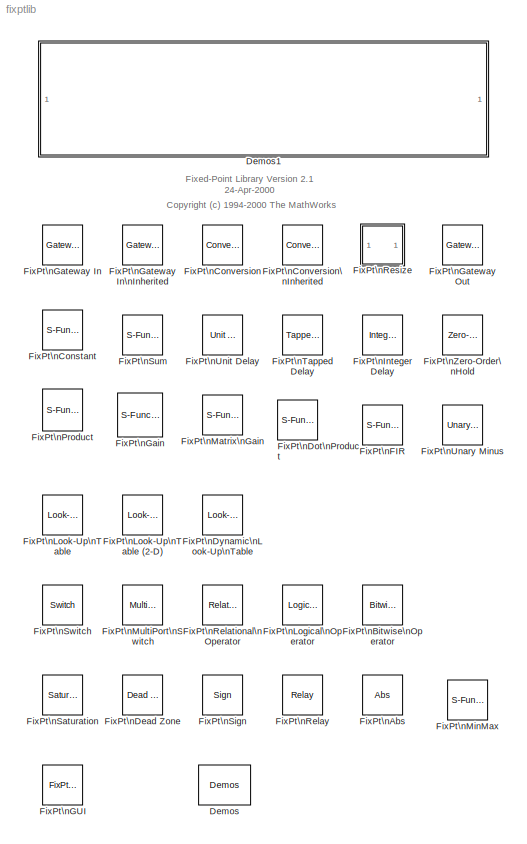
MODEL fixptlib
KIND library
BLOCK [Reference] Demos  REF=fixpt_lib_3p1/Demos
  Ports = []
  SourceBlock = fixpt_lib_3p1/Demos
BLOCK [SubSystem] Demos1
  MaskDisplay = disp('Obsolete version of Fixed-Point Blockset library.\\n\\nDouble Click this block to execute FIXPT.\\n\\nFIXPT will open latest version of the library.')
  MaskIconFrame = on
  MaskIconOpaque = on
  MaskIconRotate = none
  MaskIconUnits = autoscale
  OpenFcn = fixpt;
  Ports = []
  RTWFcnNameOpts = Auto
  RTWFileNameOpts = Auto
  RTWSystemCode = Auto
  ShowPortLabels = on
  TreatAsAtomicUnit = off
BLOCK [Reference] FixPt\nAbs  REF=fixpt_lib_3p1/Math/Abs
  DoSatur = off
  Ports = [1, 1]
  SourceBlock = fixpt_lib_3p1/Math/Abs
  SourceType = Fixed-Point Absolute Value
BLOCK [Reference] FixPt\nBitwise\nOperator  REF=fixpt_lib_3p1/Bits/Bitwise\nOperator
  BitMask = 2^5+2^2+2^0
  BitMaskRealWorld = Stored Integer
  NumInputPorts = 1
  Ports = [1, 1]
  SourceBlock = fixpt_lib_3p1/Bits/Bitwise\nOperator
  SourceType = Fixed-Point Bitwise Operator
  UseBitMask = on
  logicop = AND
BLOCK [S-Function] FixPt\nConstant
  FunctionName = sfix_need_update
  MaskCallbackString = fixptdialog(gcbh)|fixptdialog(gcbh)||fixptdialog(gcbh)|||
  MaskDescription = Generate a constant value.\n\nThis block is obsolete and is not compatible with the current version of Fixed Point Blockset.  The block needs to be replaced using FIXPT_UPDATE.
  MaskDisplay = disp(fixpt_mask_disp_prep(constval))\npatch([2 2 10 10 4 4 8 8 4 4 2 ],[2 10 10 8 8 6 6 4 4 2 2 ],[0 0 0],'bottom-right');
  MaskEnableString = on,on,on,on,on,on,on
  MaskHelp = This block is obsolete and is not compatible with the current version of Fixed Point Blockset.  The block needs to be replaced using FIXPT_UPDATE.
  MaskIconFrame = on
  MaskIconOpaque = on
  MaskIconRotate = none
  MaskIconUnits = normalized
  MaskInitialization = NumInputs = ~SpecifyOutputDataType | ~SpecifyOutputScaling;
  MaskPromptString = Constant value:|Output data type:     ex.  sfix(16),  uint(8),  float('single')|Output scaling:    Slope or [Slope Bias]    ex.  2^-9|Output scaling:|Override data type(s) with doubles|Specify Output Data Type (otherwise inherit) ...|Specify Output Scaling (otherwise inherit) ...
  MaskSelfModifiable = on
  MaskStyleString = edit,edit,edit,popup(Use Specified Scaling|Best Precision: Vector-wise),checkbox,checkbox,checkbox
  MaskToolTipString = on,on,on,on,on,on,on
  MaskTunableValueString = on,on,on,on,on,on,on
  MaskType = Fixed-Point Constant (Obsolete)
  MaskValueString = 0.0|sfix(16)|2^-1000|Best Precision: Vector-wise|off|on|on
  MaskVariableAliases = ,,,,,,
  MaskVariables = constval=@1;OutDataType=@2;OutScaling=@3;ConRadixGroup=@4;DblOver=@5;SpecifyOutputDataType=@6;SpecifyOutputScaling=@7;
  MaskVisibilityString = on,on,on,on,on,on,on
  Parameters = NumInputs
  PortCounts = []
  Ports = [0, 1]
  SFunctionModules = ''
BLOCK [Reference] FixPt\nConversion  REF=fixpt_lib_3p1/Data Type/Conversion
  ConvertRealWorld = Real World Value
  DblOver = off
  DoSatur = off
  LockScale = off
  OutDataType = sfix(16)
  OutScaling = 2^-10
  OutputDataTypeScalingMode = Specify via dialog
  Ports = [1, 1]
  RndMeth = Floor
  SourceBlock = fixpt_lib_3p1/Data Type/Conversion
  SourceType = Fixed-Point to Fixed-Point Conversion
  dolog = on
BLOCK [Reference] FixPt\nConversion\nInherited  REF=fixpt_lib_3p1/Data Type/Conversion\nInherited
  ConvertRealWorld = Real World Value
  DblOver = off
  DoSatur = off
  Ports = [2, 1]
  RndMeth = Floor
  SourceBlock = fixpt_lib_3p1/Data Type/Conversion\nInherited
  SourceType = Fixed-Point to Fixed-Point Inherited Conversion
  dolog = on
BLOCK [Reference] FixPt\nDead Zone  REF=fixpt_lib_3p1/Nonlinear/Dead Zone
  DoSatur = off
  LowerValue = -1
  Ports = [1, 1]
  SourceBlock = fixpt_lib_3p1/Nonlinear/Dead Zone
  SourceType = Fixed-Point Dead Zone
  UpperValue = 1
BLOCK [S-Function] FixPt\nDot\nProduct
  FunctionName = sfix_need_update
  MaskCallbackString = fixptdialog(gcbh)|||||||
  MaskDescription = Inner (dot) product.\ny = sum(conj(u1).*u2)\n\nThis block is obsolete and is not compatible with the current version of Fixed Point Blockset.  The block needs to be replaced using FIXPT_UPDATE.
  MaskDisplay = patch([0.55 0.5433 0.525 0.5 0.475 0.4567 0.45 0.4567 0.475 0.5 0.525 0.5433 0.55],[ 0.5 0.525 0.5433 0.55 0.5433 0.525 0.5 0.475 0.4567 0.45 0.4567 0.475 0.5],[0 0 0])\npatch([2 2 10 10 4 4 8 8 4 4 2 ],[2 10 10 8 8 6 6 4 4 2 2 ],[0 0 0],'bottom-right');
  MaskEnableString = on,on,on,on,on,on,on,on
  MaskHelp = This block is obsolete and is not compatible with the current version of Fixed Point Blockset.  The block needs to be replaced using FIXPT_UPDATE.
  MaskIconFrame = on
  MaskIconOpaque = on
  MaskIconRotate = none
  MaskIconUnits = normalized
  MaskPromptString = Output data type:     ex.  sfix(16),  uint(8),  float('single')|Output scaling:    Slope or [Slope Bias]    ex.  2^-9|Lock output scaling so autoscaling tool can't change it|Round toward:|Saturate to max or min when overflows occur|Override data type(s) with doubles|Log minimums and maximums|SpecifyOutputDataTypeAndScaling
  MaskSelfModifiable = on
  MaskStyleString = edit,edit,checkbox,popup(Zero|Nearest|Ceiling|Floor),checkbox,checkbox,checkbox,checkbox
  MaskToolTipString = on,on,on,on,on,on,on,on
  MaskTunableValueString = on,on,on,on,on,on,on,on
  MaskType = Fixed-Point Dot Product (Obsolete)
  MaskValueString = sfix(16)|2^-10|off|Floor|off|off|on|on
  MaskVariableAliases = ,,,,,,,
  MaskVariables = OutDataType=@1;OutScaling=@2;LockScale=@3;RndMeth=@4;DoSatur=@5;DblOver=@6;dolog=@7;SpecifyOutputDataTypeAndScaling=@8;
  MaskVisibilityString = on,on,on,on,on,on,on,on
  Parameters = 2
  PortCounts = []
  Ports = [2, 1]
  SFunctionModules = ''
BLOCK [Reference] FixPt\nDynamic\nLook-Up\nTable  REF=fixpt_lib_3p1/LookUp/Look-Up\nTable\nDynamic
  DblOver = off
  DoSatur = off
  LockScale = off
  LookUpMeth = Interpolation-Use End Values
  OutDataType = sfix(16)
  OutScaling = 2^-10
  OutputDataTypeScalingMode = Specify via dialog
  Ports = [3, 1]
  RndMeth = Floor
  SourceBlock = fixpt_lib_3p1/LookUp/Look-Up\nTable\nDynamic
  SourceType = Fixed-Point Look-Up Table Dynamic
  dolog = on
BLOCK [S-Function] FixPt\nFIR
  FunctionName = sfix_need_update
  MaskCallbackString = fixptdialog(gcbh)|||fixptdialog(gcbh)||fixptdialog(gcbh)|fixptdialog(gcbh)|||||||
  MaskDescription = Implement a finite impulse response (FIR) filter.\n\nThis block is obsolete and is not compatible with the current version of Fixed Point Blockset.  The block needs to be replaced using FIXPT_UPDATE.
  MaskDisplay = fprintf(fixpt_fir_mask_data(mgainval,'dispstr'))\nplot(fixpt_fir_mask_data(mgainval,1),fixpt_fir_mask_data(mgainval,0))\npatch([2 2 10 10 4 4 8 8 4 4 2 ],[2 10 10 8 8 6 6 4 4 2 2 ],[0 0 0],'bottom-right');
  MaskEnableString = on,on,on,on,on,on,on,on,on,on,on,on,on,on
  MaskHelp = This block is obsolete and is not compatible with the current version of Fixed Point Blockset.  The block needs to be replaced using FIXPT_UPDATE.
  MaskIconFrame = on
  MaskIconOpaque = on
  MaskIconRotate = none
  MaskIconUnits = normalized
  MaskInitialization = if MatRadixGroup == 5\n    RadixGroup = 1; % BEST_PREC_MAT\nelseif MatRadixGroup == 4\n    RadixGroup = 2; % BEST_PREC_COL\nelseif MatRadixGroup == 3\n    RadixGroup = 3; % BEST_PREC_ROW\nelseif MatRadixGroup == 2\n    RadixGroup = 4; % BEST_PREC_ELE\nelse\n    RadixGroup = 0; % BEST_PREC_OFF\nend
  MaskPromptString = FIR coefficients:|Initial condition:|Sample time:|Parameter data type:     ex. sfix(16),  uint(8), float('single')|Parameter scaling:    Slope    ex.  2^-9|Parameter scaling:|Output data type:     ex.  sfix(16),  uint(8),  float('single')|Output scaling:    Slope or [Slope Bias]    ex.  2^-9|Lock output scaling so autoscaling tool can't change it|Round toward:|Saturate to max or min when overflows...<+99ch>
  MaskSelfModifiable = on
  MaskStyleString = edit,edit,edit,edit,edit,popup(Use Specified Scaling|Best Precision: Element-wise|Best Precision: Row-wise|Best Precision: Column-wise|Best Precision: Matrix-wise),edit,edit,checkbox,popup(Zero|Nearest|Ceiling|Floor),checkbox,checkbox,checkbox,checkbox
  MaskToolTipString = on,on,on,on,on,on,on,on,on,on,on,on,on,on
  MaskTunableValueString = on,on,on,on,on,on,on,on,on,on,on,on,on,on
  MaskType = Fixed-Point FIR (Obsolete)
  MaskValueString = [0.1:0.1:1 0.9:-0.1:0.1]|0.0|-1|sfix( 16 )|2^-14|Best Precision: Matrix-wise|sfix(16)|2^-10|off|Floor|off|off|on|on
  MaskVariableAliases = ,,,,,,,,,,,,,
  MaskVariables = mgainval=@1;vinit=@2;samptime=@3;GainDataType=@4;GainScaling=@5;MatRadixGroup=@6;OutDataType=@7;OutScaling=@8;LockScale=@9;RndMeth=@10;DoSatur=@11;DblOver=@12;dolog=@13;SpecifyOutputDataTypeAndScaling=@14;
  MaskVisibilityString = on,on,on,on,on,on,on,on,on,on,on,on,on,on
  Parameters = 1
  PortCounts = []
  Ports = [1, 1]
  SFunctionModules = ''
BLOCK [Reference] FixPt\nGUI  REF=fixpt_lib_3p1/FixPt\nGUI
  Ports = []
  SourceBlock = fixpt_lib_3p1/FixPt\nGUI
  SourceType = Fixed-Point GUI
BLOCK [S-Function] FixPt\nGain
  FunctionName = sfix_need_update
  MaskCallbackString = fixptdialog(gcbh)|fixptdialog(gcbh)||fixptdialog(gcbh)|fixptdialog(gcbh)||||||||
  MaskDescription = Multiply the input by a constant (gain).\n\nThis block is obsolete and is not compatible with the current version of Fixed Point Blockset.  The block needs to be replaced using FIXPT_UPDATE.
  MaskDisplay = disp(fixpt_mask_disp_prep(gainval))\nplot(fixpt_gain_mask_data(gcbh,1),fixpt_gain_mask_data(gcbh,0))\npatch([2 2 10 10 4 4 8 8 4 4 2 ],[2 10 10 8 8 6 6 4 4 2 2 ],[0 0 0],'bottom-right');
  MaskEnableString = on,on,on,on,on,on,on,on,on,on,on,on,on
  MaskHelp = This block is obsolete and is not compatible with the current version of Fixed Point Blockset.  The block needs to be replaced using FIXPT_UPDATE.
  MaskIconFrame = off
  MaskIconOpaque = on
  MaskIconRotate = none
  MaskIconUnits = normalized
  MaskInitialization = if VecRadixGroup >= 5\n    RadixGroup = 1; % BEST_PREC_MAT\nelseif VecRadixGroup == 4\n    RadixGroup = 2; % BEST_PREC_COL\nelseif VecRadixGroup == 3\n    RadixGroup = 3; % BEST_PREC_ROW\nelseif VecRadixGroup == 2\n    RadixGroup = 4; % BEST_PREC_ELE\nelse\n    RadixGroup = 0; % BEST_PREC_OFF\nend
  MaskPromptString = Gain value:|Parameter data type:     ex. sfix(16),  uint(8), float('single')|Parameter scaling:    Slope    ex.  2^-9|Parameter scaling:|Output data type:     ex.  sfix(16),  uint(8),  float('single')|Output scaling:    Slope or [Slope Bias]    ex.  2^-9|Lock output scaling so autoscaling tool can't change it|Round toward:|Saturate to max or min when overflows occur|Override data type(s) with doub...<+76ch>
  MaskSelfModifiable = on
  MaskStyleString = edit,edit,edit,popup(Use Specified Scaling|Best Precision: Element-wise|Best Precision: Row-wise|Best Precision: Column-wise|Best Precision: Matrix-wise|Best Precision: Vector-wise),edit,edit,checkbox,popup(Zero|Nearest|Ceiling|Floor),checkbox,checkbox,checkbox,popup(Element-wise(K.*u)|Matrix(K*u)|Matrix(u*K)|Matrix(K*u) (u vector)),checkbox
  MaskToolTipString = on,on,on,on,on,on,on,on,on,on,on,on,on
  MaskTunableValueString = on,on,on,on,on,on,on,on,on,on,on,on,on
  MaskType = Fixed-Point Gain (Obsolete)
  MaskValueString = 1.0|sfix( 16 )|2^-14|Best Precision: Matrix-wise|sfix(16)|2^-10|off|Floor|off|off|on|Element-wise(K.*u)|on
  MaskVariableAliases = ,,,,,,,,,,,,
  MaskVariables = gainval=@1;GainDataType=@2;GainScaling=@3;VecRadixGroup=@4;OutDataType=@5;OutScaling=@6;LockScale=@7;RndMeth=@8;DoSatur=@9;DblOver=@10;dolog=@11;ElevsMatrix=@12;SpecifyOutputDataTypeAndScaling=@13;
  MaskVisibilityString = on,on,on,on,on,on,on,on,on,on,on,on,on
  Parameters = 1
  PortCounts = []
  Ports = [1, 1]
  SFunctionModules = ''
BLOCK [Reference] FixPt\nGateway In  REF=fixpt_lib_3p1/Data Type/Gateway In
  DblOver = off
  DoSatur = off
  InRealWorld = Real World Value
  LockScale = off
  OutDataType = sfix(16)
  OutScaling = 2^-10
  OutputDataTypeScalingMode = Specify via dialog
  Ports = [1, 1]
  RndMeth = Floor
  SourceBlock = fixpt_lib_3p1/Data Type/Gateway In
  SourceType = Fixed-Point Gateway In
  dolog = on
BLOCK [Reference] FixPt\nGateway In\nInherited  REF=fixpt_lib_3p1/Data Type/Gateway In\nInherited
  DblOver = off
  DoSatur = off
  InRealWorld = Real World Value
  Ports = [2, 1]
  RndMeth = Floor
  SourceBlock = fixpt_lib_3p1/Data Type/Gateway In\nInherited
  SourceType = Fixed-Point Gateway In Inherited
  dolog = on
BLOCK [Reference] FixPt\nGateway Out  REF=fixpt_lib_3p1/Data Type/Gateway Out
  DoSatur = off
  OutBuiltInType = double
  OutRealWorld = Real World Value
  Ports = [1, 1]
  RndMeth = Floor
  SourceBlock = fixpt_lib_3p1/Data Type/Gateway Out
  SourceType = Fixed-Point Gateway Out
  dolog = off
BLOCK [Reference] FixPt\nInteger Delay  REF=fixpt_lib_3p1/Delays & Holds/Integer Delay
  NumDelays = 4
  Ports = [1, 1]
  SourceBlock = fixpt_lib_3p1/Delays & Holds/Integer Delay
  SourceType = Fixed-Point Integer Delay
  samptime = -1
  vinit = 0.0
BLOCK [Reference] FixPt\nLogical\nOperator  REF=fixpt_lib_3p1/Logic & Comparison/Logical\nOperator
  LogicDataType = uint(8)
  NumInputPorts = 2
  Ports = [2, 1]
  SourceBlock = fixpt_lib_3p1/Logic & Comparison/Logical\nOperator
  SourceType = Fixed-Point Logical Operator
  logicop = AND
BLOCK [Reference] FixPt\nLook-Up\nTable  REF=fixpt_lib_3p1/LookUp/Look-Up\nTable
  DblOver = off
  DoSatur = off
  LockScale = off
  LookUpMeth = Interpolation-Use End Values
  OutDataType = sfix(16)
  OutScaling = 2^-10
  OutputDataTypeScalingMode = Specify via dialog
  Ports = [1, 1]
  RndMeth = Floor
  SourceBlock = fixpt_lib_3p1/LookUp/Look-Up\nTable
  SourceType = Fixed-Point Look-Up Table
  XLookUpData = -5:5
  YLookUpData = tanh([-5:5])
  dolog = on
BLOCK [Reference] FixPt\nLook-Up\nTable (2-D)  REF=fixpt_lib_3p1/LookUp/Look-Up\nTable (2-D)
  ColLookUpData = [1:3]
  DblOver = off
  DoSatur = off
  LockScale = off
  LookUpMeth = Interpolation-Use End Values
  OutDataType = sfix(16)
  OutScaling = 2^-10
  OutputDataTypeScalingMode = Specify via dialog
  Ports = [2, 1]
  RndMeth = Floor
  RowLookUpData = [1:3]
  SourceBlock = fixpt_lib_3p1/LookUp/Look-Up\nTable (2-D)
  SourceType = Fixed-Point Look-Up Table (2-D)
  TableLookUpData = [4 5 6;16 19 20;10 18 23]
  dolog = on
BLOCK [S-Function] FixPt\nMatrix\nGain
  FunctionName = sfix_need_update
  MaskCallbackString = fixptdialog(gcbh)|fixptdialog(gcbh)||fixptdialog(gcbh)|fixptdialog(gcbh)||||||||
  MaskDescription = Multiply the input by a constant (gain).\n\nThis block is obsolete and is not compatible with the current version of Fixed Point Blockset.  The block needs to be replaced using FIXPT_UPDATE.
  MaskDisplay = fprintf('K')\npatch([2 2 10 10 4 4 8 8 4 4 2 ],[2 10 10 8 8 6 6 4 4 2 2 ],[0 0 0],'bottom-right');
  MaskEnableString = on,on,on,on,on,on,on,on,on,on,on,on,on
  MaskHelp = This block is obsolete and is not compatible with the current version of Fixed Point Blockset.  The block needs to be replaced using FIXPT_UPDATE.
  MaskIconFrame = on
  MaskIconOpaque = on
  MaskIconRotate = none
  MaskIconUnits = normalized
  MaskInitialization = if MatRadixGroup == 5\n    RadixGroup = 1; % BEST_PREC_MAT\nelseif MatRadixGroup == 4\n    RadixGroup = 2; % BEST_PREC_COL\nelseif MatRadixGroup == 3\n    RadixGroup = 3; % BEST_PREC_ROW\nelseif MatRadixGroup == 2\n    RadixGroup = 4; % BEST_PREC_ELE\nelse\n    RadixGroup = 0; % BEST_PREC_OFF\nend
  MaskPromptString = Gain matrix value:|Parameter data type:     ex. sfix(16),  uint(8), float('single')|Parameter scaling:    Slope    ex.  2^-9|Parameter scaling:|Output data type:     ex.  sfix(16),  uint(8),  float('single')|Output scaling:    Slope or [Slope Bias]    ex.  2^-9|Lock output scaling so autoscaling tool can't change it|Round toward:|Saturate to max or min when overflows occur|Override data type(s) wi...<+83ch>
  MaskSelfModifiable = on
  MaskStyleString = edit,edit,edit,popup(Use Specified Scaling|Best Precision: Element-wise|Best Precision: Row-wise|Best Precision: Column-wise|Best Precision: Matrix-wise),edit,edit,checkbox,popup(Zero|Nearest|Ceiling|Floor),checkbox,checkbox,checkbox,popup(Element-wise(K.*u)|Matrix(K*u)|Matrix(u*K)|Matrix(K*u) (u vector)),checkbox
  MaskToolTipString = on,on,on,on,on,on,on,on,on,on,on,on,on
  MaskTunableValueString = on,on,on,on,on,on,on,on,on,on,on,on,on
  MaskType = Fixed-Point Matrix Gain (Obsolete)
  MaskValueString = eye(3,3)|sfix( 16 )|2^-14|Best Precision: Matrix-wise|sfix(16)|2^-10|off|Floor|off|off|on|Matrix(K*u) (u vector)|on
  MaskVariableAliases = ,,,,,,,,,,,,
  MaskVariables = mgainval=@1;GainDataType=@2;GainScaling=@3;MatRadixGroup=@4;OutDataType=@5;OutScaling=@6;LockScale=@7;RndMeth=@8;DoSatur=@9;DblOver=@10;dolog=@11;ElevsMatrix=@12;SpecifyOutputDataTypeAndScaling=@13;
  MaskVisibilityString = on,on,on,on,on,on,on,on,on,on,on,on,on
  Parameters = 1
  PortCounts = []
  Ports = [1, 1]
  SFunctionModules = ''
BLOCK [S-Function] FixPt\nMinMax
  FunctionName = sfix_need_update
  MaskCallbackString = ||fixptdialog(gcbh)|||||||
  MaskDescription = Output min or max of input.  For a single input, operators are applied across the input vector.  For multiple inputs, operators are applied across the inputs.\n\nThis block is obsolete and is not compatible with the current version of Fixed Point Blockset.  The block needs to be replaced using FIXPT_UPDATE.
  MaskDisplay = disp(char((Function==1)*'min'+(Function==2)*'max'))\npatch([2 2 10 10 4 4 8 8 4 4 2 ],[2 10 10 8 8 6 6 4 4 2 2 ],[0 0 0],'bottom-right');
  MaskEnableString = on,on,on,on,on,on,on,on,on,on
  MaskHelp = This block is obsolete and is not compatible with the current version of Fixed Point Blockset.  The block needs to be replaced using FIXPT_UPDATE.
  MaskIconFrame = on
  MaskIconOpaque = on
  MaskIconRotate = none
  MaskIconUnits = normalized
  MaskPromptString = Function:|Number of input ports:|Output data type:     ex.  sfix(16),  uint(8),  float('single')|Output scaling:    Slope or [Slope Bias]    ex.  2^-9|Lock output scaling so autoscaling tool can't change it|Round toward:|Saturate to max or min when overflows occur|Override data type(s) with doubles|Log minimums and maximums|SpecifyOutputDataTypeAndScaling
  MaskSelfModifiable = on
  MaskStyleString = popup(min|max),edit,edit,edit,checkbox,popup(Zero|Nearest|Ceiling|Floor),checkbox,checkbox,checkbox,checkbox
  MaskToolTipString = on,on,on,on,on,on,on,on,on,on
  MaskTunableValueString = on,on,on,on,on,on,on,on,on,on
  MaskType = Fixed-Point MinMax (Obsolete)
  MaskValueString = min|1|sfix(16)|2^-10|off|Floor|off|off|on|on
  MaskVariableAliases = ,,,,,,,,,
  MaskVariables = Function=@1;Inputs=@2;OutDataType=@3;OutScaling=@4;LockScale=@5;RndMeth=@6;DoSatur=@7;DblOver=@8;dolog=@9;SpecifyOutputDataTypeAndScaling=@10;
  MaskVisibilityString = on,on,on,on,on,on,on,on,on,on
  Parameters = Inputs
  PortCounts = []
  Ports = [1, 1]
  SFunctionModules = ''
BLOCK [Reference] FixPt\nMultiPort\nSwitch  REF=fixpt_lib_3p1/Select/MultiPort\nSwitch
  DoSatur = off
  NumInputPorts = 3
  OutputDataTypeScalingMode = Inherit via internal rule
  Ports = [4, 1]
  RndMeth = Floor
  SourceBlock = fixpt_lib_3p1/Select/MultiPort\nSwitch
  SourceType = Fixed-Point Multi Port Switch
  dolog = on
  zeroidx = off
BLOCK [S-Function] FixPt\nProduct
  FunctionName = sfix_need_update
  MaskCallbackString = |fixptdialog(gcbh)||||||||
  MaskDescription = Multiply or divide inputs. Specify one of the following:\na)  A * or / for each input\nb)  The number of inputs if only multiplication is desired\nc)  A single * or / to collapse a vector\n\nThis block is obsolete and is not compatible with the current version of Fixed Point Blockset.  The block needs to be replaced using FIXPT_UPDATE.
  MaskDisplay = plot(fixpt_mul_mask_data(gcbh,mulstr,1,MatrixMult),fixpt_mul_mask_data(gcbh,mulstr,0,MatrixMult))\npatch([2 2 10 10 4 4 8 8 4 4 2 ],[2 10 10 8 8 6 6 4 4 2 2 ],[0 0 0],'bottom-right');\ndisp(fixpt_mul_mask_data_str(gcbh,MatrixMult))
  MaskEnableString = on,on,on,on,on,on,on,on,on,on
  MaskHelp = This block is obsolete and is not compatible with the current version of Fixed Point Blockset.  The block needs to be replaced using FIXPT_UPDATE.
  MaskIconFrame = on
  MaskIconOpaque = on
  MaskIconRotate = none
  MaskIconUnits = normalized
  MaskInitialization = mulstr = '**';\nif ~isempty (listofops)\n   if all(  ( listofops == '*' ) | ( listofops == '/' )  )\n      mulstr = listofops;\n   else\n      i = eval(listofops,'-1');\n      if i < 2\n         mulstr = '*';\n         if i < 1\n           disp(get_param(gcb,'Name'))\n           disp('Error: Please enter multiplier/divider string OR number of inputs');\n         end\n      else\n         i = min(i...<+125ch>
  MaskPromptString = Enter */ characters or the number of inputs:|Output data type:     ex.  sfix(16),  uint(8),  float('single')|Output scaling:    Slope or [Slope Bias]    ex.  2^-9|Lock output scaling so autoscaling tool can't change it|Round toward:|Saturate to max or min when overflows occur|Override data type(s) with doubles|Log minimums and maximums|Multiplication|SpecifyOutputDataTypeAndScaling
  MaskSelfModifiable = on
  MaskStyleString = edit,edit,edit,checkbox,popup(Zero|Nearest|Ceiling|Floor),checkbox,checkbox,checkbox,popup(Element-wise(.*)|Matrix(*)),checkbox
  MaskToolTipString = on,on,on,on,on,on,on,on,on,on
  MaskTunableValueString = on,on,on,on,on,on,on,on,on,on
  MaskType = Fixed-Point Product (Obsolete)
  MaskValueString = **|sfix(16)|2^-10|off|Floor|off|off|on|Element-wise(.*)|on
  MaskVariableAliases = ,,,,,,,,,
  MaskVariables = listofops=&1;OutDataType=@2;OutScaling=@3;LockScale=@4;RndMeth=@5;DoSatur=@6;DblOver=@7;dolog=@8;ElevsMatrix=@9;SpecifyOutputDataTypeAndScaling=@10;
  MaskVisibilityString = on,on,on,on,on,on,on,on,on,on
  Parameters = length(mulstr)
  PortCounts = []
  Ports = [2, 1]
  SFunctionModules = ''
BLOCK [Reference] FixPt\nRelational\nOperator  REF=fixpt_lib_3p1/Logic & Comparison/Relational\nOperator
  LogicDataType = uint(8)
  Ports = [2, 1]
  SourceBlock = fixpt_lib_3p1/Logic & Comparison/Relational\nOperator
  SourceType = Fixed-Point Relational Operator
  relop = <=
BLOCK [Reference] FixPt\nRelay  REF=fixpt_lib_3p1/Nonlinear/Relay
  ConRadixGroup = Best Precision: Vector-wise
  DblOver = off
  OffOutputValue = 0
  OffSwitchValue = 0
  OnOutputValue = 1
  OnSwitchValue = 0
  OutDataType = uint(8)
  OutScaling = 2^-10
  OutputDataTypeScalingMode = Specify via dialog
  Ports = [1, 1]
  SourceBlock = fixpt_lib_3p1/Nonlinear/Relay
  SourceType = Fixed-Point Relay
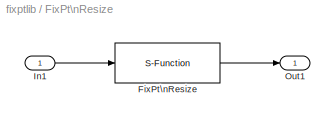
BLOCK [SubSystem] FixPt\nResize
  MaskCallbackString = if any(strcmp(get_param(gcb, 'ResizeAction'), {'Decrease bits by half', 'Increase bits by twice'})), set_param(gcb, 'MaskVisibilities', {'on'; 'on'; 'off'; 'on'; 'on'; 'on'; 'on'}), else, set_param(gcb, 'MaskVisibilities', {'on'; 'on'; 'on'; 'on'; 'on'; 'on'; 'on'}), end||||||
  MaskDescription = Resize the number of bits used by a Fixed-Point Blockset signal.\n\nThis block is obsolete and is not compatible with the current version of Fixed Point Blockset.  The block needs to be replaced using FIXPT_UPDATE.
  MaskDisplay = fprintf('Resize')\npatch([0.725 0.725 0.975 0.975 0.8 0.8 0.925 0.925 0.8 0.8 0.725 ],[0.025 0.275 0.275 0.2 0.2 0.15 0.15 0.075 0.075 0.025 0.025 ],[0 0 0]);\npatch([0.05 0.05 0.3 0.3 0.125 0.125 0.25 0.25 0.125 0.125 0.05 ],[0.7 0.95 0.95 0.875 0.875 0.825 0.825 0.75 0.75 0.7 0.7 ],[0 0 0]);
  MaskEnableString = on,on,on,on,on,on,on
  MaskHelp = This block is obsolete and is not compatible with the current version of Fixed Point Blockset.  The block needs to be replaced using FIXPT_UPDATE.
  MaskIconFrame = on
  MaskIconOpaque = on
  MaskIconRotate = none
  MaskIconUnits = normalized
  MaskPromptString = Resize action:|Retain:|Number of Bits|Round toward:|Saturate to max or min when overflows occur|Override data type(s) with doubles|Log minimums and maximums
  MaskSelfModifiable = on
  MaskStyleString = popup(Decrease bits by half|Decrease bits by specified number|Increase bits by twice|Increase bits by specified number|Set bits to specified number),popup(range|precision),edit,popup(Zero|Nearest|Ceiling|Floor),checkbox,checkbox,checkbox
  MaskToolTipString = on,on,on,on,on,on,on
  MaskTunableValueString = on,on,on,on,on,on,on
  MaskType = Fixed-Point to Fixed-Point Resize (Obsolete)
  MaskValueString = Decrease bits by half|range|16|Floor|off|off|off
  MaskVariableAliases = ,,,,,,
  MaskVariables = ResizeAction=@1;RetainRangeOrPrecision=@2;NumBits=@3;RndMeth=@4;DoSatur=@5;DblOver=@6;dolog=@7;
  MaskVisibilityString = on,on,off,on,on,on,on
  Ports = [1, 1]
  RTWFcnNameOpts = Auto
  RTWFileNameOpts = Auto
  RTWSystemCode = Auto
  ShowPortLabels = on
  TreatAsAtomicUnit = off
BLOCK [S-Function] FixPt\nResize/FixPt\nResize
  FunctionName = sfix_need_update
  Parameters = 1
  PortCounts = []
  Ports = [1, 1]
  SFunctionModules = ''
BLOCK [Inport] FixPt\nResize/In1
  Interpolate = on
  LatchInput = off
  Port = 1
BLOCK [Outport] FixPt\nResize/Out1
  InitialOutput = []
  OutputWhenDisabled = held
  Port = 1
BLOCK [Reference] FixPt\nSaturation  REF=fixpt_lib_3p1/Nonlinear/Saturation
  Ports = [1, 1]
  SourceBlock = fixpt_lib_3p1/Nonlinear/Saturation
  SourceType = Fixed-Point Saturation
  lowlimit = -0.5
  uplimit = 0.5
BLOCK [Reference] FixPt\nSign  REF=fixpt_lib_3p1/Nonlinear/Sign
  Ports = [1, 1]
  SourceBlock = fixpt_lib_3p1/Nonlinear/Sign
  SourceType = Fixed-Point Signum
BLOCK [S-Function] FixPt\nSum
  FunctionName = sfix_need_update
  MaskCallbackString = |fixptdialog(gcbh)|||||||
  MaskDescription = Add or subtract inputs. Specify one of the following:\na)  A + or - for each input\nb)  The number of inputs if only addition is desired\nc)  A single + or - to collapse a vector\n\nThis block is obsolete and is not compatible with the current version of Fixed Point Blockset.  The block needs to be replaced using FIXPT_UPDATE.
  MaskDisplay = plot(fixpt_mul_mask_data(gcbh,addstr,1,0),fixpt_mul_mask_data(gcbh,addstr,0,0))\npatch([2 2 10 10 4 4 8 8 4 4 2 ],[2 10 10 8 8 6 6 4 4 2 2 ],[0 0 0],'bottom-right');
  MaskEnableString = on,on,on,on,on,on,on,on,on
  MaskHelp = This block is obsolete and is not compatible with the current version of Fixed Point Blockset.  The block needs to be replaced using FIXPT_UPDATE.
  MaskIconFrame = on
  MaskIconOpaque = on
  MaskIconRotate = none
  MaskIconUnits = normalized
  MaskInitialization = addstr = '++';\nif ~isempty (listofsigns)\n   if all(  ( listofsigns == '+' ) | ( listofsigns == '-' )  )\n      addstr = listofsigns;\n   else\n      Inputs=eval(listofsigns,'-1');\n      if Inputs < 2\n         addstr = '+';\n         if Inputs < 1\n           disp(get_param(gcb,'Name'))\n           disp('Error: must enter plus/minus string OR number of inputs');\n         end\n      else\n     ...<+113ch>
  MaskPromptString = Enter +- characters or the number of inputs:|Output data type:     ex.  sfix(16),  uint(8),  float('single')|Output scaling:    Slope or [Slope Bias]    ex.  2^-9|Lock output scaling so autoscaling tool can't change it|Round toward:|Saturate to max or min when overflows occur|Override data type(s) with doubles|Log minimums and maximums|SpecifyOutputDataTypeAndScaling
  MaskSelfModifiable = on
  MaskStyleString = edit,edit,edit,checkbox,popup(Zero|Nearest|Ceiling|Floor),checkbox,checkbox,checkbox,checkbox
  MaskToolTipString = on,on,on,on,on,on,on,on,on
  MaskTunableValueString = on,on,on,on,on,on,on,on,on
  MaskType = Fixed-Point Sum (Obsolete)
  MaskValueString = ++|sfix(16)|2^-10|off|Floor|off|off|on|on
  MaskVariableAliases = ,,,,,,,,
  MaskVariables = listofsigns=&1;OutDataType=@2;OutScaling=@3;LockScale=@4;RndMeth=@5;DoSatur=@6;DblOver=@7;dolog=@8;SpecifyOutputDataTypeAndScaling=@9;
  MaskVisibilityString = on,on,on,on,on,on,on,on,on
  Parameters = Inputs
  PortCounts = []
  Ports = [2, 1]
  SFunctionModules = ''
BLOCK [Reference] FixPt\nSwitch  REF=fixpt_lib_3p1/Select/Switch
  Criteria = u2 >= Threshold
  DoSatur = off
  OutputDataTypeScalingMode = Inherit via internal rule
  Ports = [3, 1]
  RndMeth = Floor
  SourceBlock = fixpt_lib_3p1/Select/Switch
  SourceType = Fixed-Point Switch
  dolog = on
  vthresh = 0.5
BLOCK [Reference] FixPt\nTapped Delay  REF=fixpt_lib_3p1/Delays & Holds/Tapped Delay
  DelayOrder = Oldest
  NumDelays = 4
  Ports = [1, 1]
  SourceBlock = fixpt_lib_3p1/Delays & Holds/Tapped Delay
  SourceType = Fixed-Point Tapped Delay Line
  samptime = -1
  vinit = 0.0
BLOCK [Reference] FixPt\nUnary Minus  REF=fixpt_lib_3p1/Math/Unary Minus
  DoSatur = off
  Ports = [1, 1]
  SourceBlock = fixpt_lib_3p1/Math/Unary Minus
  SourceType = Fixed-Point Unary Minus
BLOCK [Reference] FixPt\nUnit Delay  REF=fixpt_lib_3p1/Delays & Holds/Unit Delay
  Ports = [1, 1]
  SourceBlock = fixpt_lib_3p1/Delays & Holds/Unit Delay
  SourceType = Fixed-Point Unit Delay
  samptime = -1
  vinit = 0.0
BLOCK [Reference] FixPt\nZero-Order\nHold  REF=fixpt_lib_3p1/Delays & Holds/Zero-Order\nHold
  Ports = [1, 1]
  SourceBlock = fixpt_lib_3p1/Delays & Holds/Zero-Order\nHold
  SourceType = Fixed-Point Zero-Order Hold
  samptime = 1.0
LINE FixPt\nResize/FixPt\nResize:1 -> FixPt\nResize/Out1:1
LINE FixPt\nResize/In1:1 -> FixPt\nResize/FixPt\nResize:1
